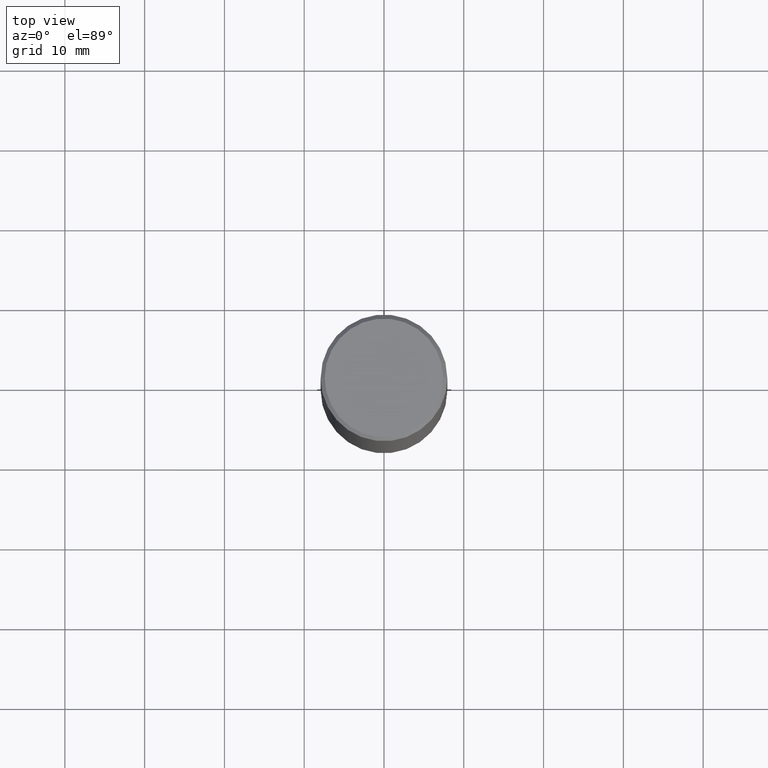
[diagram: clean part render]
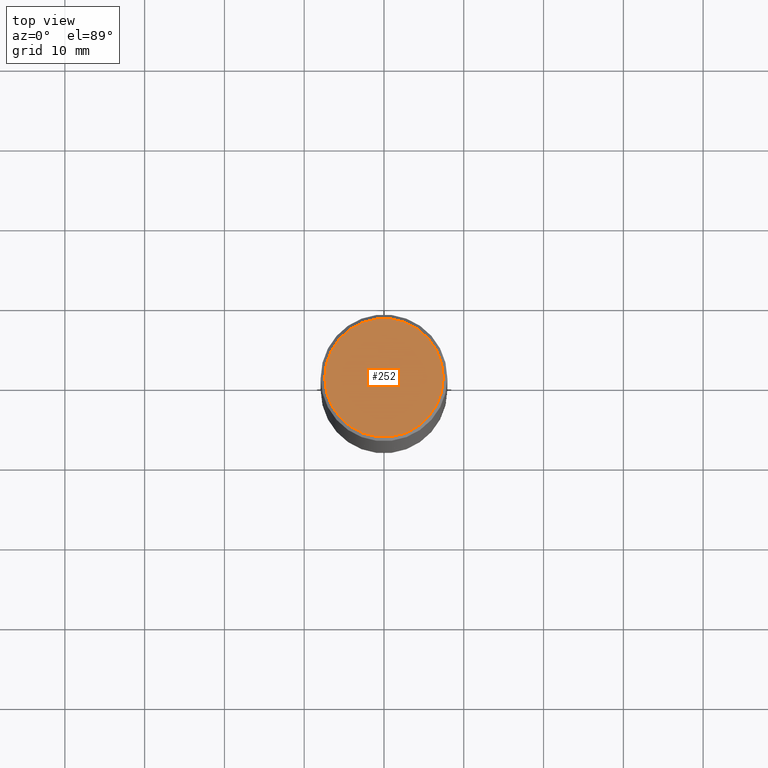
[diagram: same view with one face highlighted and labeled with its STEP entity id]
A machine part, top view. The second image highlights one B-rep face of the part: STEP entity #252.
In plain terms, the highlighted planar face has unit normal (0, -0, -1).
Its self-contained STEP definition (entity closure, byte-faithful):
#9 = ORIENTED_EDGE ( 'NONE', *, *, #369, .T. ) ;
#34 = DIRECTION ( 'NONE',  ( 1.000000000000000000, -6.982962677686266711E-15, 4.873475059489872853E-29 ) ) ;
#49 = CIRCLE ( 'NONE', #155, 0.2925000000000002043 ) ;
#59 = DIRECTION ( 'NONE',  ( -2.445468806185136597E-29, 3.491481338843145583E-15, 1.000000000000000000 ) ) ;
#68 = VERTEX_POINT ( 'NONE', #88 ) ;
#88 = CARTESIAN_POINT ( 'NONE',  ( -0.2925000000000002043, 2.077431396611664583E-15, -2.433052119357378304E-16 ) ) ;
#97 = CARTESIAN_POINT ( 'NONE',  ( 2.042516583223234512E-15, 0.2925000000000002043, -1.142910897579482572E-15 ) ) ;
#107 = CARTESIAN_POINT ( 'NONE',  ( 5.949953061710752563E-45, -8.494956071168549013E-31, -2.433052119357234336E-16 ) ) ;
#134 = PLANE ( 'NONE',  #278 ) ;
#136 = DIRECTION ( 'NONE',  ( 2.438088387897960049E-29, -3.491481338843145188E-15, -1.000000000000000000 ) ) ;
#155 = AXIS2_PLACEMENT_3D ( 'NONE', #107, #209, #34 ) ;
#193 = CARTESIAN_POINT ( 'NONE',  ( 0.2925000000000002043, -2.110215457714321114E-15, -2.433052119357089383E-16 ) ) ;
#200 = DIRECTION ( 'NONE',  ( 1.000000000000000000, -6.982962677686266711E-15, 4.873475059489872853E-29 ) ) ;
#207 = EDGE_CURVE ( 'NONE', #68, #237, #230, .T. ) ;
#209 = DIRECTION ( 'NONE',  ( -2.445468806185136597E-29, 3.491481338843145583E-15, 1.000000000000000000 ) ) ;
#226 = EDGE_LOOP ( 'NONE', ( #368, #9 ) ) ;
#230 = CIRCLE ( 'NONE', #396, 0.2925000000000002043 ) ;
#237 = VERTEX_POINT ( 'NONE', #193 ) ;
#252 = ADVANCED_FACE ( 'NONE', ( #345 ), #134, .F. ) ;
#278 = AXIS2_PLACEMENT_3D ( 'NONE', #97, #136, #317 ) ;
#317 = DIRECTION ( 'NONE',  ( -1.000000000000000000, 6.982962677686265922E-15, -4.876176775795935793E-29 ) ) ;
#342 = CARTESIAN_POINT ( 'NONE',  ( 5.949953061710752563E-45, -8.494956071168549013E-31, -2.433052119357234336E-16 ) ) ;
#345 = FACE_OUTER_BOUND ( 'NONE', #226, .T. ) ;
#368 = ORIENTED_EDGE ( 'NONE', *, *, #207, .T. ) ;
#369 = EDGE_CURVE ( 'NONE', #237, #68, #49, .T. ) ;
#396 = AXIS2_PLACEMENT_3D ( 'NONE', #342, #59, #200 ) ;